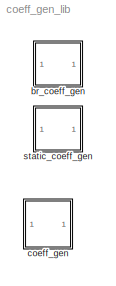
MODEL coeff_gen_lib
KIND library
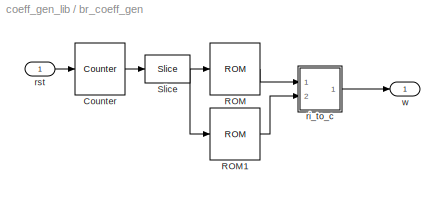
BLOCK [SubSystem] br_coeff_gen
  MaskCallbackString = |||
  MaskEnableString = on,on,on,on
  MaskIconFrame = on
  MaskIconOpaque = on
  MaskIconRotate = none
  MaskIconUnits = autoscale
  MaskInitialization = cursys = gcb;\ndisp(cursys);\nvlen = length(Coeffs);\n
  MaskPromptString = Coefficients: (0 to 2^(FFTSize-1)-1)|Step Period: (2^?)|Bit Width:|Latency:
  MaskSelfModifiable = on
  MaskStyleString = edit,edit,edit,edit
  MaskTabNameString = ,,,
  MaskToolTipString = on,on,on,on
  MaskTunableValueString = on,on,on,on
  MaskValueString = [0 1 2 3]|0|18|4
  MaskVarAliasString = ,,,
  MaskVariables = Coeffs=@1;StepPeriod=@2;n_bits=@3;latency=@4;
  MaskVisibilityString = on,on,on,on
  MinAlgLoopOccurrences = off
  Ports = [1, 1]
  RTWSystemCode = Auto
  TreatAsAtomicUnit = off
BLOCK [Reference] br_coeff_gen/Counter  REF=xbsIndex_r3/Counter
  Ports = [1, 1]
  SourceBlock = xbsIndex_r3/Counter
  SourceType = Xilinx Counter Block
  arith_type = Unsigned
  bin_pt = 0
  cnt_by_val = 1
  cnt_to = Inf
  cnt_type = Free Running
  dbl_ovrd = off
  en = off
  explicit_period = off
  gen_core = off
  load_pin = off
  n_bits = log2(vlen) + StepPeriod
  operation = Up
  period = 1
  rst = on
  show_param = off
  start_count = 0
  use_rpm = on
  xl_area = [0, 0, 0, 0, 0, 0, 0]
  xl_use_area = off
BLOCK [Reference] br_coeff_gen/ROM  REF=xbsIndex_r3/ROM
  Ports = [1, 1]
  SourceBlock = xbsIndex_r3/ROM
  SourceType = Xilinx Single Port Read-Only Memory
  arith_type = Signed  (2's comp)
  bin_pt = n_bits-1
  dbl_ovrd = off
  depth = vlen
  distributed_mem = on
  en = off
  explicit_period = off
  gen_core = off
  initVector = round( real(Coeffs) * 2^(n_bits-1) ) / 2^(n_bits-1)
  init_reg = 0
  init_zero = on
  latency = latency
  n_bits = n_bits
  period = 1
  rst = off
  show_param = on
  use_rpm = off
  xl_area = [0, 0, 0, 0, 0, 0, 0]
  xl_use_area = off
BLOCK [Reference] br_coeff_gen/ROM1  REF=xbsIndex_r3/ROM
  Ports = [1, 1]
  SourceBlock = xbsIndex_r3/ROM
  SourceType = Xilinx Single Port Read-Only Memory
  arith_type = Signed  (2's comp)
  bin_pt = n_bits-1
  dbl_ovrd = off
  depth = vlen
  distributed_mem = on
  en = off
  explicit_period = off
  gen_core = off
  initVector = round( imag(Coeffs) * 2^(n_bits-1)  ) / 2^(n_bits-1)
  init_reg = 0
  init_zero = on
  latency = latency
  n_bits = n_bits
  period = 1
  rst = off
  show_param = on
  use_rpm = off
  xl_area = [0, 0, 0, 0, 0, 0, 0]
  xl_use_area = off
BLOCK [Reference] br_coeff_gen/Slice  REF=xbsIndex_r3/Slice
  Ports = [1, 1]
  SourceBlock = xbsIndex_r3/Slice
  SourceType = Xilinx Slice Block
  base0 = LSB of Input
  base1 = MSB of Input
  bit0 = 0
  bit1 = 0
  boolean_output = off
  dbl_ovrd = off
  explicit_period = off
  mode = Upper Bit Location + Width
  nbits = log2(vlen)
  period = 1
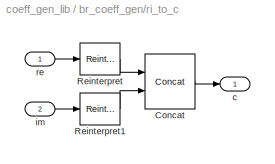
BLOCK [SubSystem] br_coeff_gen/ri_to_c
  MinAlgLoopOccurrences = off
  Ports = [2, 1]
  RTWSystemCode = Auto
  TreatAsAtomicUnit = off
BLOCK [Reference] br_coeff_gen/ri_to_c/Concat  REF=xbsIndex_r3/Concat
  Ports = [2, 1]
  SourceBlock = xbsIndex_r3/Concat
  SourceType = Xilinx Bus Concatenator
  dbl_ovrd = off
  explicit_period = off
  num_inputs = 2
  period = 1
BLOCK [Reference] br_coeff_gen/ri_to_c/Reinterpret  REF=xbsIndex_r3/Reinterpret
  Ports = [1, 1]
  SourceBlock = xbsIndex_r3/Reinterpret
  SourceType = Xilinx Type Reinterpreting Block
  arith_type = Unsigned
  bin_pt = 0
  force_arith_type = on
  force_bin_pt = on
  force_valid = on
BLOCK [Reference] br_coeff_gen/ri_to_c/Reinterpret1  REF=xbsIndex_r3/Reinterpret
  Ports = [1, 1]
  SourceBlock = xbsIndex_r3/Reinterpret
  SourceType = Xilinx Type Reinterpreting Block
  arith_type = Unsigned
  bin_pt = 0
  force_arith_type = on
  force_bin_pt = on
  force_valid = on
BLOCK [Outport] br_coeff_gen/ri_to_c/c
  BusOutputAsStruct = off
  IconDisplay = Port number
BLOCK [Inport] br_coeff_gen/ri_to_c/im
  IconDisplay = Port number
  LatchInput = off
  Port = 2
BLOCK [Inport] br_coeff_gen/ri_to_c/re
  IconDisplay = Port number
  LatchInput = off
  Port = 1
BLOCK [Inport] br_coeff_gen/rst
  IconDisplay = Port number
  LatchInput = off
  Port = 1
BLOCK [Outport] br_coeff_gen/w
  BusOutputAsStruct = off
  IconDisplay = Port number
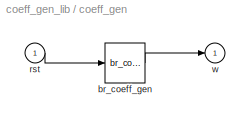
BLOCK [SubSystem] coeff_gen
  BlockChoice = br_coeff_gen
  MemberBlocks = br_coeff_gen,static_coeff_gen
  MinAlgLoopOccurrences = off
  Ports = [1, 1]
  RTWSystemCode = Auto
  TemplateBlock = self
  TreatAsAtomicUnit = off
BLOCK [Reference] coeff_gen/br_coeff_gen  REF=coeff_gen_lib/br_coeff_gen  (lib defined in mdl_8ad5df67866b)
  Coeffs = [0 1 2 3]
  Ports = [1, 1]
  ShowPortLabels = on
  SourceBlock = coeff_gen_lib/br_coeff_gen
  SourceType = Unknown
  StepPeriod = 0
  latency = 4
  n_bits = 18
BLOCK [Inport] coeff_gen/rst
  IconDisplay = Port number
  LatchInput = off
  Port = 1
BLOCK [Outport] coeff_gen/w
  BusOutputAsStruct = off
  IconDisplay = Port number
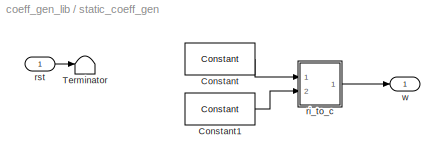
BLOCK [SubSystem] static_coeff_gen
  MaskCallbackString = ||
  MaskEnableString = on,on,on
  MaskIconFrame = on
  MaskIconOpaque = on
  MaskIconRotate = none
  MaskIconUnits = autoscale
  MaskInitialization = cursys = gcb;\ndisp(cursys);\n
  MaskPromptString = Coefficients: (0 to 2^(FFTSize-1)-1)|Bit Width:|Latency:
  MaskSelfModifiable = on
  MaskStyleString = edit,edit,edit
  MaskTabNameString = ,,
  MaskToolTipString = on,on,on
  MaskTunableValueString = on,on,on
  MaskValueString = 0|18|4
  MaskVarAliasString = ,,
  MaskVariables = Coeffs=@1;n_bits=@2;latency=@3;
  MaskVisibilityString = on,on,on
  MinAlgLoopOccurrences = off
  Ports = [1, 1]
  RTWSystemCode = Auto
  TreatAsAtomicUnit = off
BLOCK [Reference] static_coeff_gen/Constant  REF=xbsIndex_r3/Constant
  Ports = [0, 1]
  SourceBlock = xbsIndex_r3/Constant
  SourceType = Xilinx Constant Block
  arith_type = Signed  (2's comp)
  bin_pt = n_bits - 1
  carry = CIN
  const = round(real(Coeffs(1)) * 2^(n_bits-1)) / 2^(n_bits-1)
  dbl_ovrd = off
  equ = P=C
  explicit_period = on
  inp1 = P
  inp2 = PCIN>>17
  iostate = 0
  n_bits = n_bits
  opr = +
  opselect = C
  period = 1
BLOCK [Reference] static_coeff_gen/Constant1  REF=xbsIndex_r3/Constant
  Ports = [0, 1]
  SourceBlock = xbsIndex_r3/Constant
  SourceType = Xilinx Constant Block
  arith_type = Signed  (2's comp)
  bin_pt = n_bits - 1
  carry = CIN
  const = round(imag(Coeffs(1)) * 2^(n_bits-1)) / 2^(n_bits-1)
  dbl_ovrd = off
  equ = P=C
  explicit_period = on
  inp1 = P
  inp2 = PCIN>>17
  iostate = 0
  n_bits = n_bits
  opr = +
  opselect = C
  period = 1
BLOCK [Terminator] static_coeff_gen/Terminator
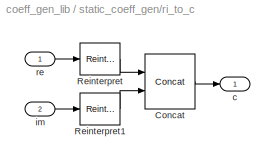
BLOCK [SubSystem] static_coeff_gen/ri_to_c
  MinAlgLoopOccurrences = off
  Ports = [2, 1]
  RTWSystemCode = Auto
  TreatAsAtomicUnit = off
BLOCK [Reference] static_coeff_gen/ri_to_c/Concat  REF=xbsIndex_r3/Concat
  Ports = [2, 1]
  SourceBlock = xbsIndex_r3/Concat
  SourceType = Xilinx Bus Concatenator
  dbl_ovrd = off
  explicit_period = off
  num_inputs = 2
  period = 1
BLOCK [Reference] static_coeff_gen/ri_to_c/Reinterpret  REF=xbsIndex_r3/Reinterpret
  Ports = [1, 1]
  SourceBlock = xbsIndex_r3/Reinterpret
  SourceType = Xilinx Type Reinterpreting Block
  arith_type = Unsigned
  bin_pt = 0
  force_arith_type = on
  force_bin_pt = on
  force_valid = on
BLOCK [Reference] static_coeff_gen/ri_to_c/Reinterpret1  REF=xbsIndex_r3/Reinterpret
  Ports = [1, 1]
  SourceBlock = xbsIndex_r3/Reinterpret
  SourceType = Xilinx Type Reinterpreting Block
  arith_type = Unsigned
  bin_pt = 0
  force_arith_type = on
  force_bin_pt = on
  force_valid = on
BLOCK [Outport] static_coeff_gen/ri_to_c/c
  BusOutputAsStruct = off
  IconDisplay = Port number
BLOCK [Inport] static_coeff_gen/ri_to_c/im
  IconDisplay = Port number
  LatchInput = off
  Port = 2
BLOCK [Inport] static_coeff_gen/ri_to_c/re
  IconDisplay = Port number
  LatchInput = off
  Port = 1
BLOCK [Inport] static_coeff_gen/rst
  IconDisplay = Port number
  LatchInput = off
  Port = 1
BLOCK [Outport] static_coeff_gen/w
  BusOutputAsStruct = off
  IconDisplay = Port number
LINE br_coeff_gen/Counter:1 -> br_coeff_gen/Slice:1
LINE br_coeff_gen/ROM1:1 -> br_coeff_gen/ri_to_c:2
LINE br_coeff_gen/ROM:1 -> br_coeff_gen/ri_to_c:1
NET br_coeff_gen/Slice:1 -> br_coeff_gen/ROM1:1, br_coeff_gen/ROM:1
LINE br_coeff_gen/ri_to_c/Concat:1 -> br_coeff_gen/ri_to_c/c:1
LINE br_coeff_gen/ri_to_c/Reinterpret1:1 -> br_coeff_gen/ri_to_c/Concat:2
LINE br_coeff_gen/ri_to_c/Reinterpret:1 -> br_coeff_gen/ri_to_c/Concat:1
LINE br_coeff_gen/ri_to_c/im:1 -> br_coeff_gen/ri_to_c/Reinterpret1:1
LINE br_coeff_gen/ri_to_c/re:1 -> br_coeff_gen/ri_to_c/Reinterpret:1
LINE br_coeff_gen/ri_to_c:1 -> br_coeff_gen/w:1
LINE br_coeff_gen/rst:1 -> br_coeff_gen/Counter:1
LINE coeff_gen/br_coeff_gen:1 -> coeff_gen/w:1
LINE coeff_gen/rst:1 -> coeff_gen/br_coeff_gen:1
LINE static_coeff_gen/Constant1:1 -> static_coeff_gen/ri_to_c:2
LINE static_coeff_gen/Constant:1 -> static_coeff_gen/ri_to_c:1
LINE static_coeff_gen/ri_to_c/Concat:1 -> static_coeff_gen/ri_to_c/c:1
LINE static_coeff_gen/ri_to_c/Reinterpret1:1 -> static_coeff_gen/ri_to_c/Concat:2
LINE static_coeff_gen/ri_to_c/Reinterpret:1 -> static_coeff_gen/ri_to_c/Concat:1
LINE static_coeff_gen/ri_to_c/im:1 -> static_coeff_gen/ri_to_c/Reinterpret1:1
LINE static_coeff_gen/ri_to_c/re:1 -> static_coeff_gen/ri_to_c/Reinterpret:1
LINE static_coeff_gen/ri_to_c:1 -> static_coeff_gen/w:1
LINE static_coeff_gen/rst:1 -> static_coeff_gen/Terminator:1
note: NET lines group one-source signal fan-out (src -> all destinations, sorted); 1:1 wires keep LINE
